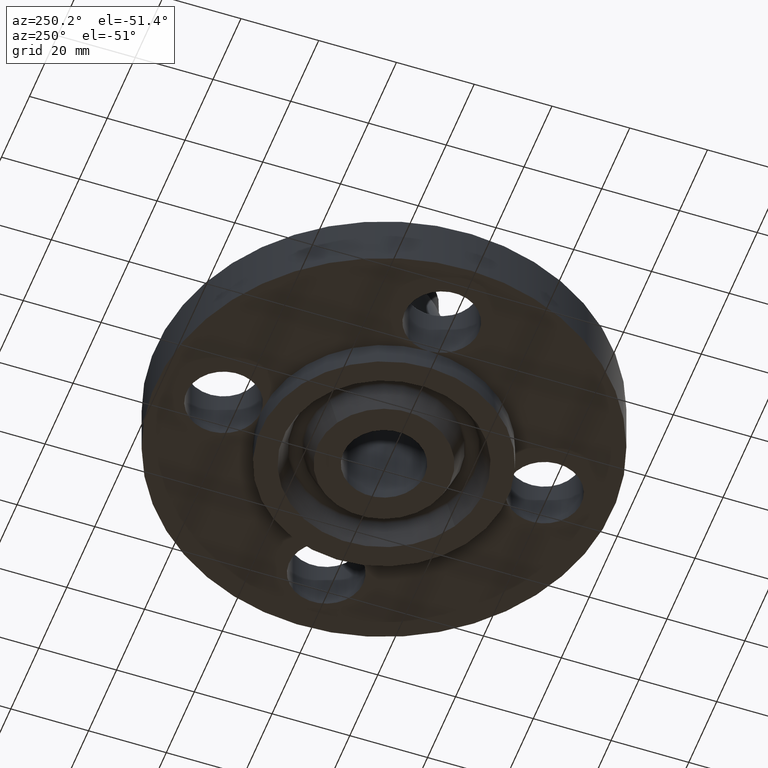
[diagram: clean part render]
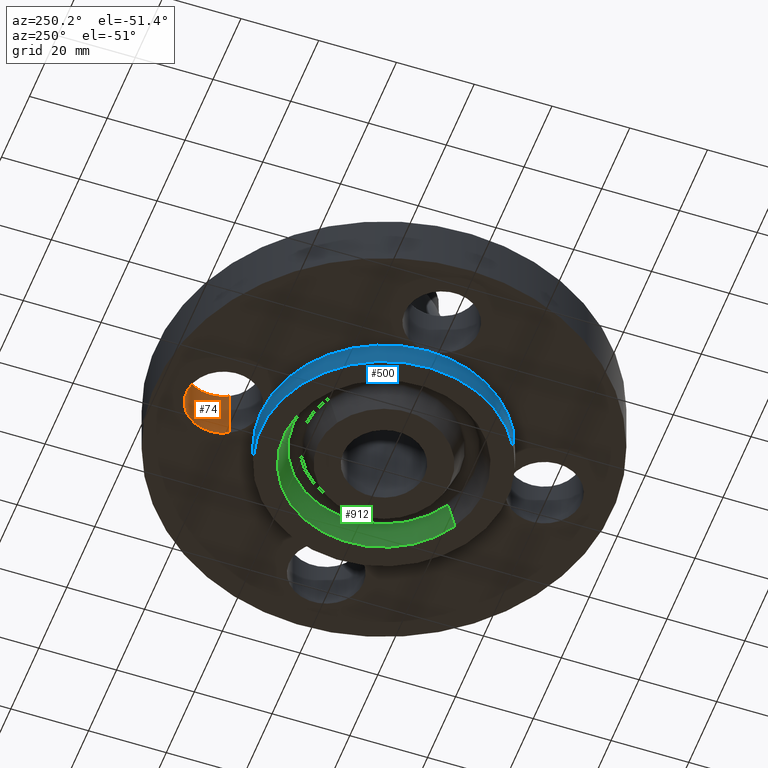
[diagram: same view with three faces highlighted in distinct colors, each labeled with its STEP entity id]
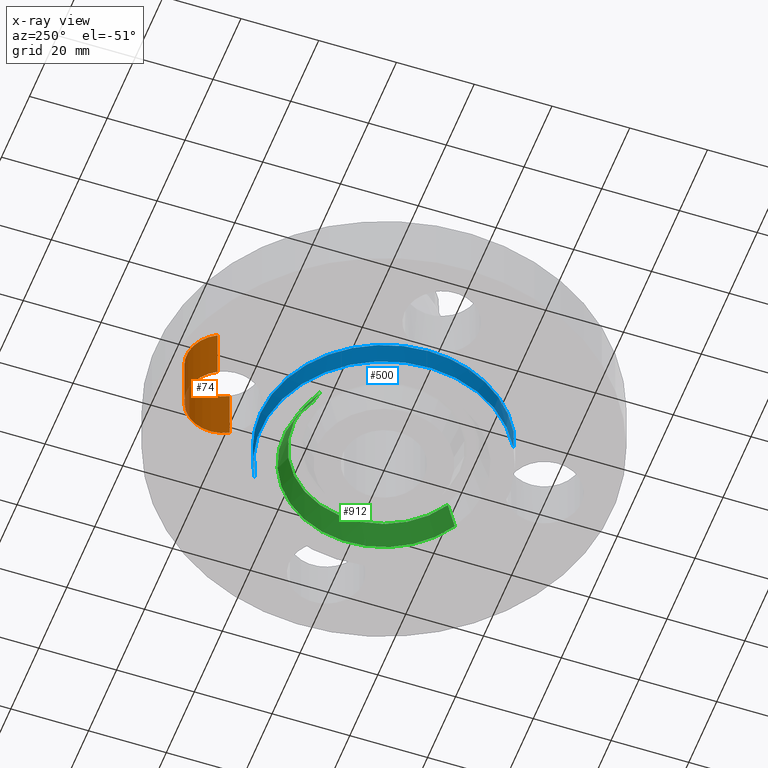
[diagram: x-ray of the same camera — body ghosted, the three highlighted faces saturated]
A machine part, auxiliary view with three faces highlighted in distinct colors.
The next image is the same camera in x-ray (body ghosted, the three faces saturated) — at least one of them is partly hidden behind the body in this view.
Their STEP definitions:

[orange] entity #74 — the highlighted cylindrical surface (partial cylindrical patch) has radius 9.525 mm, axis along (0, -0, -1).
#38=AXIS2_PLACEMENT_3D('Cylinder Axis2P3D',#35,#36,#37) ;
#51=AXIS2_PLACEMENT_3D('Circle Axis2P3D',#49,#50,$) ;
#65=AXIS2_PLACEMENT_3D('Circle Axis2P3D',#63,#64,$) ;
#35=CARTESIAN_POINT('Axis2P3D Location',(0.,1.62500000001,0.556062992128)) ;
#40=CARTESIAN_POINT('Line Origine',(-0.32909346071,1.80478457698,0.280000000001)) ;
#44=CARTESIAN_POINT('Vertex',(-0.32909346071,1.80478457698,-6.99353086378E-017)) ;
#46=CARTESIAN_POINT('Vertex',(-0.32909346071,1.80478457698,0.560000000002)) ;
#49=CARTESIAN_POINT('Axis2P3D Location',(0.,1.62500000001,0.)) ;
#53=CARTESIAN_POINT('Vertex',(0.32909346071,1.44521542303,-6.99353086378E-017)) ;
#56=CARTESIAN_POINT('Line Origine',(0.32909346071,1.44521542303,0.280000000001)) ;
#60=CARTESIAN_POINT('Vertex',(0.32909346071,1.44521542303,0.560000000002)) ;
#63=CARTESIAN_POINT('Axis2P3D Location',(0.,1.62500000001,0.560000000002)) ;
#36=DIRECTION('Axis2P3D Direction',(0.,-0.,-0.0393700787402)) ;
#37=DIRECTION('Axis2P3D XDirection',(0.0345504945626,-0.0188750212049,0.)) ;
#41=DIRECTION('Vector Direction',(0.,0.,-0.0393700787402)) ;
#50=DIRECTION('Axis2P3D Direction',(0.,-0.,-0.0393700787402)) ;
#57=DIRECTION('Vector Direction',(0.,0.,-0.0393700787402)) ;
#64=DIRECTION('Axis2P3D Direction',(0.,-0.,-0.0393700787402)) ;
#42=VECTOR('Line Direction',#41,0.0393700787402) ;
#58=VECTOR('Line Direction',#57,0.0393700787402) ;
#69=ORIENTED_EDGE('',*,*,#48,.F.) ;
#70=ORIENTED_EDGE('',*,*,#55,.T.) ;
#71=ORIENTED_EDGE('',*,*,#62,.T.) ;
#72=ORIENTED_EDGE('',*,*,#67,.F.) ;
#74=ADVANCED_FACE('PartBody',(#73),#39,.F.) ;
#52=CIRCLE('generated circle',#51,0.375000000001) ;
#66=CIRCLE('generated circle',#65,0.375000000001) ;
#39=CYLINDRICAL_SURFACE('generated cylinder',#38,0.375000000001) ;
#48=EDGE_CURVE('',#45,#47,#43,.F.) ;
#55=EDGE_CURVE('',#45,#54,#52,.T.) ;
#62=EDGE_CURVE('',#54,#61,#59,.F.) ;
#67=EDGE_CURVE('',#47,#61,#66,.T.) ;
#68=EDGE_LOOP('',(#69,#70,#71,#72)) ;
#73=FACE_OUTER_BOUND('',#68,.T.) ;
#43=LINE('Line',#40,#42) ;
#59=LINE('Line',#56,#58) ;
#45=VERTEX_POINT('',#44) ;
#47=VERTEX_POINT('',#46) ;
#54=VERTEX_POINT('',#53) ;
#61=VERTEX_POINT('',#60) ;

[blue] entity #500 — the highlighted cylindrical surface (partial cylindrical patch) has radius 31.75 mm, axis along (0, 0, -1).
#450=AXIS2_PLACEMENT_3D('Cylinder Axis2P3D',#447,#448,#449) ;
#454=AXIS2_PLACEMENT_3D('Circle Axis2P3D',#452,#453,$) ;
#470=AXIS2_PLACEMENT_3D('Circle Axis2P3D',#468,#469,$) ;
#477=AXIS2_PLACEMENT_3D('Circle Axis2P3D',#475,#476,$) ;
#482=AXIS2_PLACEMENT_3D('Circle Axis2P3D',#480,#481,$) ;
#87=CARTESIAN_POINT('Vertex',(3.90510912389E-015,1.25000000001,1.39870617276E-016)) ;
#447=CARTESIAN_POINT('Axis2P3D Location',(0.,0.,0.970000000004)) ;
#452=CARTESIAN_POINT('Axis2P3D Location',(0.,0.,-0.250000000001)) ;
#456=CARTESIAN_POINT('Vertex',(-0.599281923258,-1.09697820237,-0.250000000001)) ;
#458=CARTESIAN_POINT('Vertex',(0.599281923258,1.09697820237,-0.250000000001)) ;
#461=CARTESIAN_POINT('Line Origine',(-0.599281923258,-1.09697820237,-0.125)) ;
#465=CARTESIAN_POINT('Vertex',(-0.599281923258,-1.09697820237,1.39870617276E-016)) ;
#468=CARTESIAN_POINT('Axis2P3D Location',(0.,0.,1.39870617276E-016)) ;
#472=CARTESIAN_POINT('Vertex',(-1.25000000001,-1.39870617276E-016,0.)) ;
#475=CARTESIAN_POINT('Axis2P3D Location',(0.,0.,1.39870617276E-016)) ;
#480=CARTESIAN_POINT('Axis2P3D Location',(0.,0.,1.39870617276E-016)) ;
#484=CARTESIAN_POINT('Vertex',(0.599281923258,1.09697820237,1.39870617276E-016)) ;
#487=CARTESIAN_POINT('Line Origine',(0.599281923258,1.09697820237,-0.125)) ;
#448=DIRECTION('Axis2P3D Direction',(0.,0.,-0.0393700787402)) ;
#449=DIRECTION('Axis2P3D XDirection',(0.0188750212049,0.0345504945626,0.)) ;
#453=DIRECTION('Axis2P3D Direction',(0.,0.,-0.0393700787402)) ;
#462=DIRECTION('Vector Direction',(0.,0.,-0.0393700787402)) ;
#469=DIRECTION('Axis2P3D Direction',(0.,0.,-0.0393700787402)) ;
#476=DIRECTION('Axis2P3D Direction',(0.,0.,-0.0393700787402)) ;
#481=DIRECTION('Axis2P3D Direction',(0.,0.,-0.0393700787402)) ;
#488=DIRECTION('Vector Direction',(0.,0.,-0.0393700787402)) ;
#463=VECTOR('Line Direction',#462,0.0393700787402) ;
#489=VECTOR('Line Direction',#488,0.0393700787402) ;
#493=ORIENTED_EDGE('',*,*,#460,.F.) ;
#494=ORIENTED_EDGE('',*,*,#467,.T.) ;
#495=ORIENTED_EDGE('',*,*,#474,.T.) ;
#496=ORIENTED_EDGE('',*,*,#479,.T.) ;
#497=ORIENTED_EDGE('',*,*,#486,.T.) ;
#498=ORIENTED_EDGE('',*,*,#491,.F.) ;
#500=ADVANCED_FACE('PartBody',(#499),#451,.T.) ;
#455=CIRCLE('generated circle',#454,1.25000000001) ;
#471=CIRCLE('generated circle',#470,1.25000000001) ;
#478=CIRCLE('generated circle',#477,1.25000000001) ;
#483=CIRCLE('generated circle',#482,1.25000000001) ;
#451=CYLINDRICAL_SURFACE('generated cylinder',#450,1.25000000001) ;
#460=EDGE_CURVE('',#457,#459,#455,.T.) ;
#467=EDGE_CURVE('',#457,#466,#464,.F.) ;
#474=EDGE_CURVE('',#466,#473,#471,.T.) ;
#479=EDGE_CURVE('',#473,#88,#478,.T.) ;
#486=EDGE_CURVE('',#88,#485,#483,.T.) ;
#491=EDGE_CURVE('',#459,#485,#490,.F.) ;
#492=EDGE_LOOP('',(#493,#494,#495,#496,#497,#498)) ;
#499=FACE_OUTER_BOUND('',#492,.T.) ;
#464=LINE('Line',#461,#463) ;
#490=LINE('Line',#487,#489) ;
#88=VERTEX_POINT('',#87) ;
#457=VERTEX_POINT('',#456) ;
#459=VERTEX_POINT('',#458) ;
#466=VERTEX_POINT('',#465) ;
#473=VERTEX_POINT('',#472) ;
#485=VERTEX_POINT('',#484) ;

[green] entity #912 — the highlighted conical surface has half-angle 23 deg.
#773=AXIS2_PLACEMENT_3D('Circle Axis2P3D',#771,#772,$) ;
#847=AXIS2_PLACEMENT_3D('Cone Axis2P3D',#844,#845,#846) ;
#868=AXIS2_PLACEMENT_3D('Circle Axis2P3D',#866,#867,$) ;
#766=CARTESIAN_POINT('Vertex',(0.487096347224,-0.891623882884,-0.250000000001)) ;
#768=CARTESIAN_POINT('Vertex',(-0.487096347224,0.891623882884,-0.250000000001)) ;
#771=CARTESIAN_POINT('Axis2P3D Location',(3.49676543189E-017,-1.39870617276E-016,-0.250000000001)) ;
#813=CARTESIAN_POINT('Vertex',(-0.440063979875,0.80553171193,-0.0188873350169)) ;
#815=CARTESIAN_POINT('Vertex',(0.440063979875,-0.80553171193,-0.0188873350169)) ;
#844=CARTESIAN_POINT('Axis2P3D Location',(0.,0.,-0.0188873350169)) ;
#849=CARTESIAN_POINT('Line Origine',(-0.46358016355,0.848577797407,-0.134443667509)) ;
#854=CARTESIAN_POINT('Line Origine',(0.46358016355,-0.848577797407,-0.134443667509)) ;
#866=CARTESIAN_POINT('Axis2P3D Location',(0.,0.,-0.0188873350169)) ;
#772=DIRECTION('Axis2P3D Direction',(0.,0.,-0.0393700787402)) ;
#845=DIRECTION('Axis2P3D Direction',(-0.,-0.,-0.0393700787402)) ;
#846=DIRECTION('Axis2P3D XDirection',(-0.0188750212049,0.0345504945626,0.)) ;
#850=DIRECTION('Vector Direction',(-0.00737505833565,0.0134999537303,-0.0362403485611)) ;
#855=DIRECTION('Vector Direction',(0.00737505833565,-0.0134999537303,-0.0362403485611)) ;
#867=DIRECTION('Axis2P3D Direction',(0.,0.,0.0393700787402)) ;
#851=VECTOR('Line Direction',#850,0.0393700787402) ;
#856=VECTOR('Line Direction',#855,0.0393700787402) ;
#907=ORIENTED_EDGE('',*,*,#775,.T.) ;
#908=ORIENTED_EDGE('',*,*,#858,.T.) ;
#909=ORIENTED_EDGE('',*,*,#870,.T.) ;
#910=ORIENTED_EDGE('',*,*,#853,.F.) ;
#912=ADVANCED_FACE('PartBody',(#911),#848,.F.) ;
#774=CIRCLE('generated circle',#773,1.016) ;
#869=CIRCLE('generated circle',#868,0.917898494011) ;
#848=CONICAL_SURFACE('Cone',#847,0.917898494011,0.401425727959) ;
#775=EDGE_CURVE('',#769,#767,#774,.T.) ;
#853=EDGE_CURVE('',#769,#814,#852,.F.) ;
#858=EDGE_CURVE('',#767,#816,#857,.F.) ;
#870=EDGE_CURVE('',#816,#814,#869,.T.) ;
#906=EDGE_LOOP('',(#907,#908,#909,#910)) ;
#911=FACE_OUTER_BOUND('',#906,.T.) ;
#852=LINE('Line',#849,#851) ;
#857=LINE('Line',#854,#856) ;
#767=VERTEX_POINT('',#766) ;
#769=VERTEX_POINT('',#768) ;
#814=VERTEX_POINT('',#813) ;
#816=VERTEX_POINT('',#815) ;